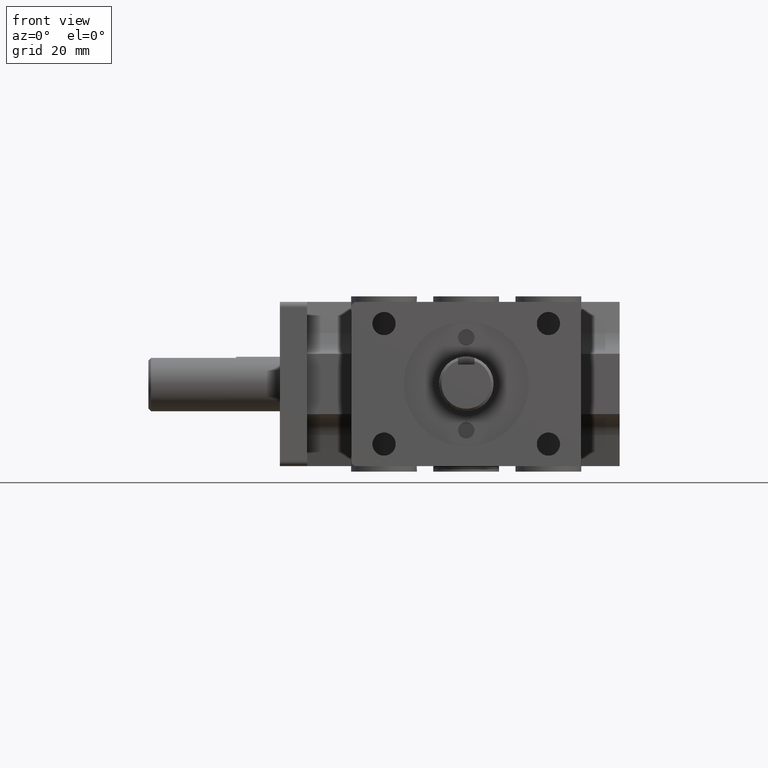
[diagram: clean part render]
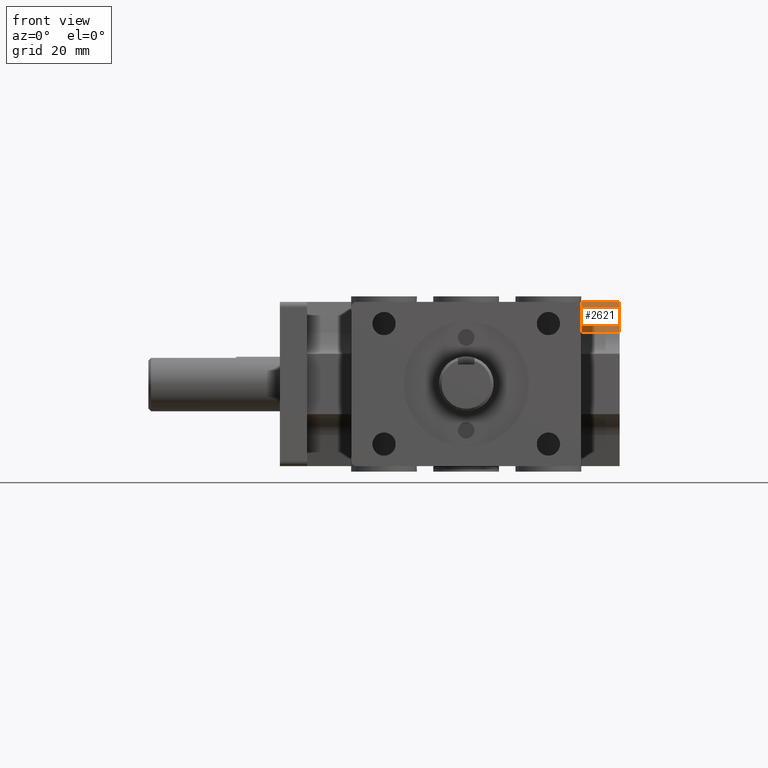
[diagram: same view with one face highlighted and labeled with its STEP entity id]
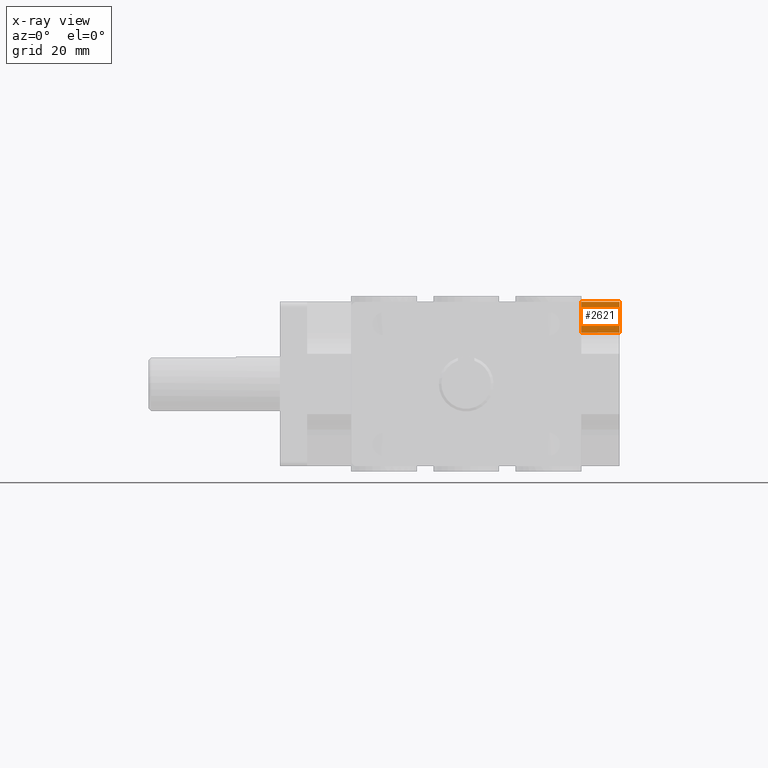
[diagram: x-ray of the same camera — body ghosted, the highlighted face saturated]
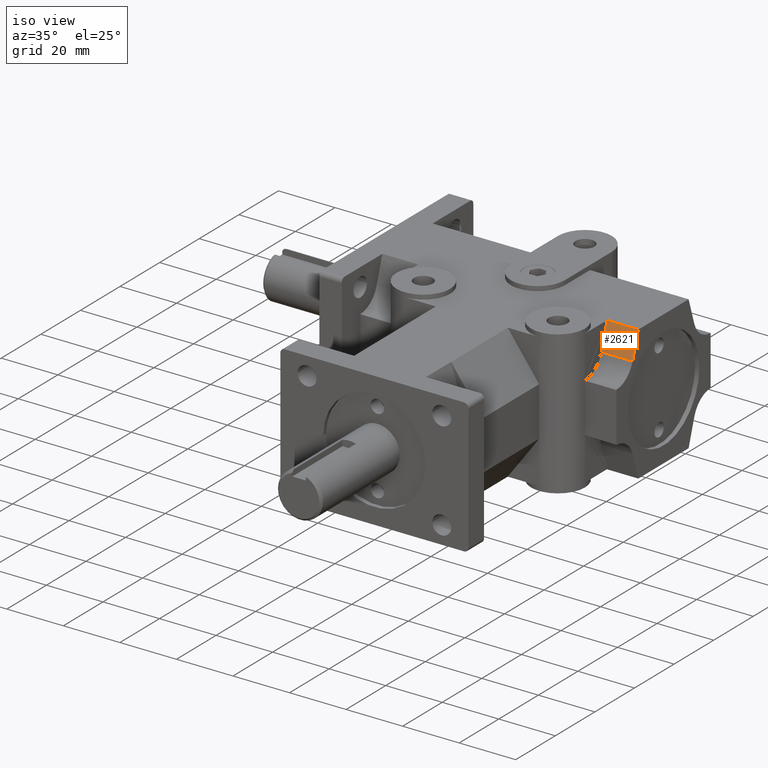
[diagram: same view with one face highlighted and labeled with its STEP entity id]
A machine part, front view. The second image highlights one B-rep face of the part: STEP entity #2621.
The next image is the same camera in x-ray: the body ghosted, the highlighted face saturated — about 0% of this face is hidden behind the body in this view.
A second angle (iso view) of the same face is appended — the face is thin or edge-on in the first view.
In plain terms, the highlighted planar face has unit normal (0, 0.952, -0.306).
Its self-contained STEP definition (entity closure, byte-faithful):
#101=PLANE('',#2860);
#228=FACE_OUTER_BOUND('',#404,.T.);
#404=EDGE_LOOP('',(#2112,#2113,#2114,#2115));
#592=LINE('',#4093,#857);
#645=LINE('',#4221,#910);
#646=LINE('',#4224,#911);
#647=LINE('',#4225,#912);
#857=VECTOR('',#3284,1.);
#910=VECTOR('',#3417,1.);
#911=VECTOR('',#3422,1.);
#912=VECTOR('',#3423,1.);
#1249=VERTEX_POINT('',#4066);
#1261=VERTEX_POINT('',#4091);
#1269=VERTEX_POINT('',#4122);
#1296=VERTEX_POINT('',#4220);
#1535=EDGE_CURVE('',#1249,#1261,#592,.T.);
#1599=EDGE_CURVE('',#1249,#1296,#645,.T.);
#1601=EDGE_CURVE('',#1261,#1269,#646,.T.);
#1602=EDGE_CURVE('',#1296,#1269,#647,.T.);
#2112=ORIENTED_EDGE('',*,*,#1535,.T.);
#2113=ORIENTED_EDGE('',*,*,#1601,.T.);
#2114=ORIENTED_EDGE('',*,*,#1602,.F.);
#2115=ORIENTED_EDGE('',*,*,#1599,.F.);
#2621=ADVANCED_FACE('',(#228),#101,.F.);
#2860=AXIS2_PLACEMENT_3D('',#4223,#3420,#3421);
#3284=DIRECTION('',(0.,0.306035293145686,0.95202016751182));
#3417=DIRECTION('',(-1.,6.12303176911189E-17,0.));
#3420=DIRECTION('center_axis',(5.8292497305101E-17,0.95202016751182,-0.306035293145686));
#3421=DIRECTION('ref_axis',(0.,-0.306035293145686,-0.95202016751182));
#3422=DIRECTION('',(-1.,0.,0.));
#3423=DIRECTION('',(1.8738638224005E-17,0.306035293145686,0.95202016751182));
#4066=CARTESIAN_POINT('',(1.75,2.63618685695402,0.583448000330467));
#4091=CARTESIAN_POINT('',(1.75,2.75,0.9375));
#4093=CARTESIAN_POINT('',(1.75,-0.471134133502447,-9.0828627687321));
#4122=CARTESIAN_POINT('',(1.315,2.75,0.9375));
#4220=CARTESIAN_POINT('',(1.315,2.63618685695402,0.583448000330467));
#4221=CARTESIAN_POINT('',(1.815,2.63618685695402,0.583448000330467));
#4223=CARTESIAN_POINT('Origin',(1.815,2.63618685695402,0.583448000330467));
#4224=CARTESIAN_POINT('',(0.328125,2.75,0.9375));
#4225=CARTESIAN_POINT('',(1.315,2.63618685695402,0.583448000330467));